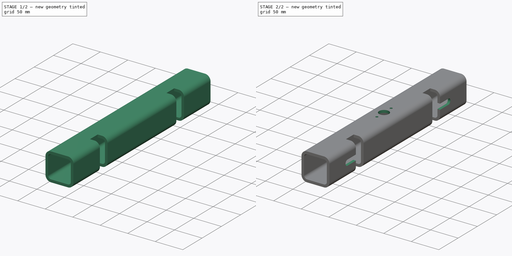
[diagram: build sequence overview — one tinted view per stage of 2, left to right]
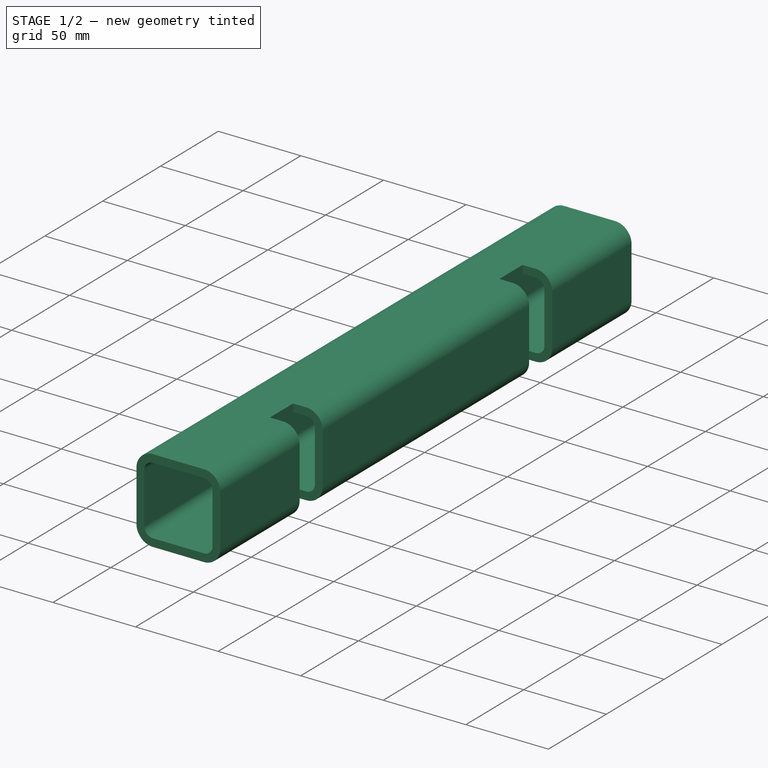
[diagram: stage 1 of 2 — iso view after this stage's code; geometry added in this stage tinted green]
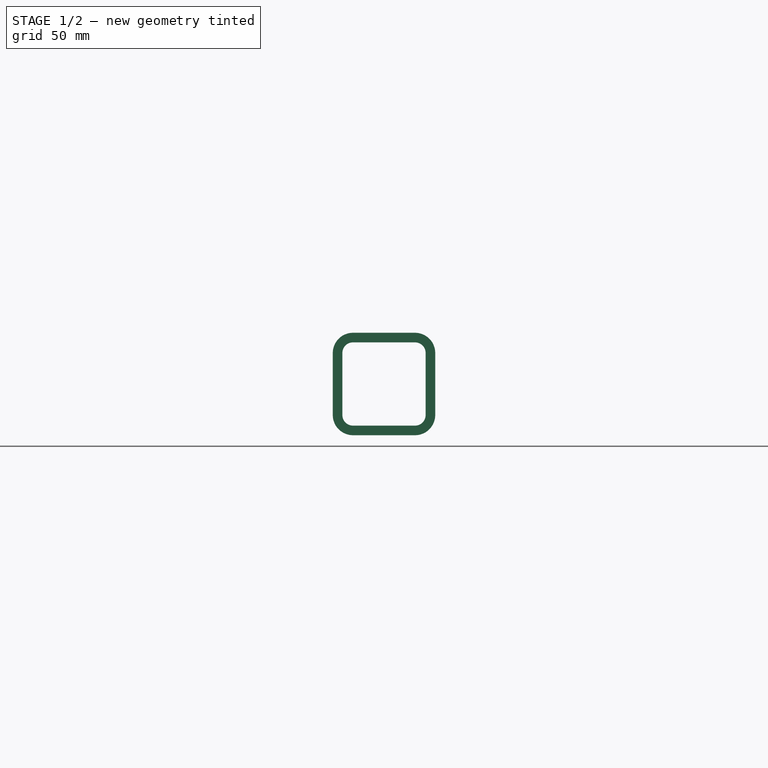
[diagram: stage 1 of 2 — front view after this stage's code; geometry added in this stage tinted green]
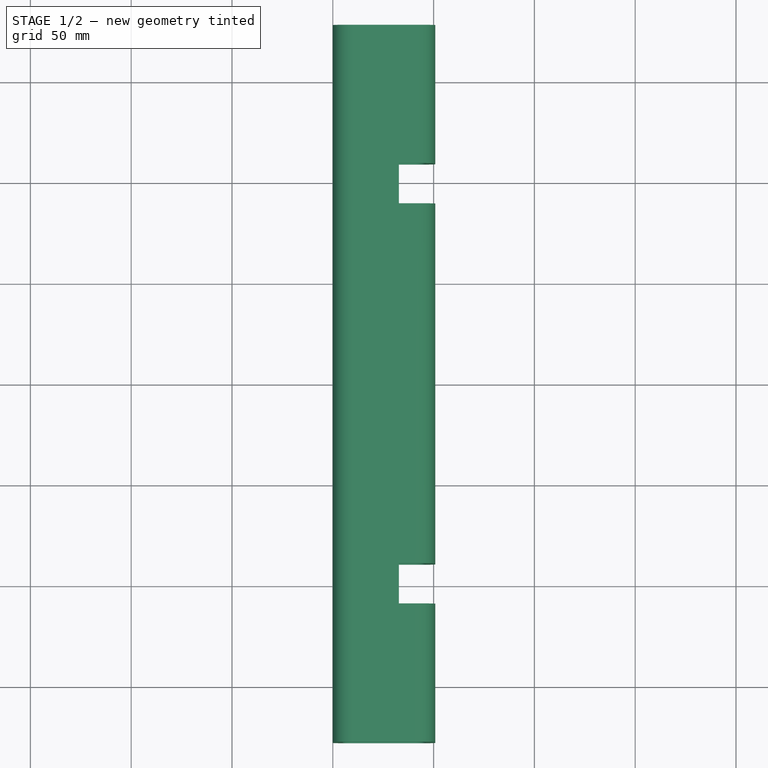
[diagram: stage 1 of 2 — top view after this stage's code; geometry added in this stage tinted green]
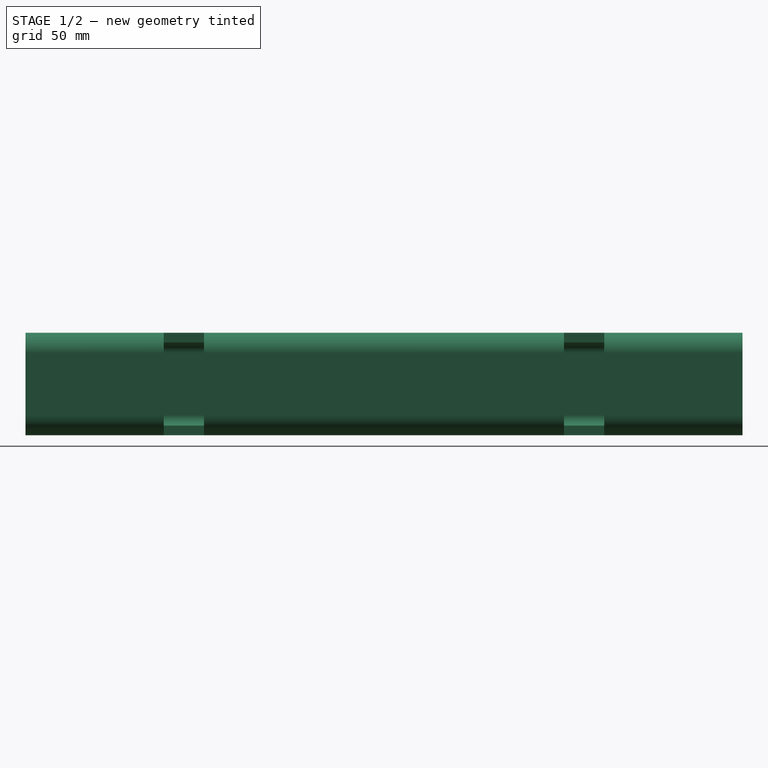
[diagram: stage 1 of 2 — right view after this stage's code; geometry added in this stage tinted green]
FCSTD DOCUMENT  (FreeCAD 0.19R23578 (Git))
Label: frame_bottom_piece
License: All rights reserved
LicenseURL: http://en.wikipedia.org/wiki/All_rights_reserved
objects: PartDesign::CoordinateSystem×6, Sketcher::SketchObject×4, PartDesign::Pocket×3, PartDesign::Pad×1, PartDesign::Body×1, App::Part×1
note: 19 computed .brp shape members not serialized (recipe doc carries the construction recipe); baked Part::Feature solids carry a one-line shape summary decoded from their .brp

FEATURE [Sketcher::SketchObject] Sketch006
  AttachmentOffset = pos=(0,0,50.8) rot=(0,0,1;0rad)
  MapMode = 5
  Placement = pos=(50.8,-1.13e-14,1.13e-14) rot=(0.57735,0.57735,0.57735;2.0944rad)
  Support = -> [YZ_Plane011]
  sketch-geometry (8):
    g0: ArcOfCircle CenterX=-131 CenterY=25.4 CenterZ=0 NormalX=0 NormalY=0 NormalZ=1 AngleXU=0 Radius=5 StartAngle=1.5708 EndAngle=4.71239
    g1: ArcOfCircle CenterX=-95 CenterY=25.4 CenterZ=0 NormalX=0 NormalY=0 NormalZ=1 AngleXU=0 Radius=5 StartAngle=4.71239 EndAngle=7.85398
    g2: LineSegment StartX=-131 StartY=20.4 StartZ=0 EndX=-95 EndY=20.4 EndZ=0
    g3: LineSegment StartX=-131 StartY=30.4 StartZ=0 EndX=-95 EndY=30.4 EndZ=0
    g4: ArcOfCircle CenterX=95 CenterY=25.4 CenterZ=0 NormalX=0 NormalY=0 NormalZ=1 AngleXU=0 Radius=5 StartAngle=1.5708 EndAngle=4.71239
    g5: ArcOfCircle CenterX=131 CenterY=25.4 CenterZ=0 NormalX=0 NormalY=0 NormalZ=1 AngleXU=0 Radius=5 StartAngle=4.71239 EndAngle=7.85398
    g6: LineSegment StartX=95 StartY=20.4 StartZ=0 EndX=131 EndY=20.4 EndZ=0
    g7: LineSegment StartX=95 StartY=30.4 StartZ=0 EndX=131 EndY=30.4 EndZ=0
  constraints (18):
    c: Tangent(g0,g3) = 1.5708
    c: Tangent(g0,g2) = -1.5708
    c: Tangent(g2,g1) = -1.5708
    c: Tangent(g3,g1) = 1.5708
    c: Horizontal(g2)
    c: Equal(g0,g1)
    c: Tangent(g4,g7) = 1.5708
    c: Tangent(g4,g6) = -1.5708
    c: Tangent(g6,g5) = -1.5708
    c: Tangent(g7,g5) = 1.5708
    c: Horizontal(g6)
    c: Diameter(g4) = 10
    c: Equal(g4,g1)
    c: Symmetric(g4,g1,g-2)
    c: Symmetric(g0,g5,g-2)
    c: DistanceY(g-1,g4) = 25.4
    c: DistanceX(g1,g4) = 190
    c: DistanceX(g0,g5) = 262
FEATURE [Sketcher::SketchObject] Sketch012
  AttachmentOffset = pos=(0,0,50.8) rot=(0,0,1;0rad)
  MapMode = 5
  Placement = pos=(0,0,50.8) rot=(0,0,1;0rad)
  Support = -> [XY_Plane011]
  sketch-geometry (4):
    g0: Circle CenterX=25.4 CenterY=0 CenterZ=0 NormalX=0 NormalY=0 NormalZ=1 AngleXU=0 Radius=9
    g1: Circle CenterX=25.4 CenterY=18.5 CenterZ=0 NormalX=0 NormalY=0 NormalZ=1 AngleXU=0 Radius=2.25
    g2: Circle CenterX=25.4 CenterY=-18.5 CenterZ=0 NormalX=0 NormalY=0 NormalZ=1 AngleXU=0 Radius=2.25
    g3: LineSegment StartX=25.4 StartY=18.5 StartZ=0 EndX=25.4 EndY=-18.5 EndZ=0
  constraints (10):
    c: PointOnObject(g0,g-1)
    c: Coincident(g3,g1)
    c: Coincident(g3,g2)
    c: PointOnObject(g0,g3)
    c: Symmetric(g1,g2,g-1)
    c: Equal(g1,g2)
    c: DistanceY(g2,g1) = 37
    c: DistanceX(g-1,g0) = 25.4
    c: Diameter(g1) = 4.5
    c: Diameter(g0) = 18
FEATURE [Sketcher::SketchObject] Sketch
  MapMode = 5
  Placement = pos=(0,0,0) rot=(1,0,0;1.5708rad)
  Support = -> [XZ_Plane011]
  sketch-geometry (16):
    g0: LineSegment StartX=10 StartY=0 StartZ=0 EndX=40.8 EndY=0 EndZ=0
    g1: LineSegment StartX=50.8 StartY=10 StartZ=0 EndX=50.8 EndY=40.8 EndZ=0
    g2: LineSegment StartX=40.8 StartY=50.8 StartZ=0 EndX=10 EndY=50.8 EndZ=0
    g3: LineSegment StartX=0 StartY=40.8 StartZ=0 EndX=0 EndY=10 EndZ=0
    g4: ArcOfCircle CenterX=10 CenterY=40.8 CenterZ=0 NormalX=0 NormalY=0 NormalZ=1 AngleXU=0 Radius=10 StartAngle=1.5708 EndAngle=3.14159
    g5: ArcOfCircle CenterX=10 CenterY=10 CenterZ=0 NormalX=0 NormalY=0 NormalZ=1 AngleXU=0 Radius=10 StartAngle=3.14159 EndAngle=4.71239
    g6: ArcOfCircle CenterX=40.8 CenterY=10 CenterZ=0 NormalX=0 NormalY=0 NormalZ=1 AngleXU=0 Radius=10 StartAngle=4.71239 EndAngle=6.28319
    g7: ArcOfCircle CenterX=40.8 CenterY=40.8 CenterZ=0 NormalX=0 NormalY=0 NormalZ=1 AngleXU=0 Radius=10 StartAngle=3e-16 EndAngle=1.5708
    g8: LineSegment StartX=10 StartY=46.0375 StartZ=0 EndX=40.8 EndY=46.0375 EndZ=0
    g9: LineSegment StartX=46.0375 StartY=40.8 StartZ=0 EndX=46.0375 EndY=10 EndZ=0
    g10: LineSegment StartX=40.8 StartY=4.7625 StartZ=0 EndX=10 EndY=4.7625 EndZ=0
    g11: LineSegment StartX=4.7625 StartY=10 StartZ=0 EndX=4.7625 EndY=40.8 EndZ=0
    g12: ArcOfCircle CenterX=10 CenterY=40.8 CenterZ=0 NormalX=0 NormalY=0 NormalZ=1 AngleXU=0 Radius=5.2375 StartAngle=1.5708 EndAngle=3.14159
    g13: ArcOfCircle CenterX=10 CenterY=10 CenterZ=0 NormalX=0 NormalY=0 NormalZ=1 AngleXU=0 Radius=5.2375 StartAngle=3.14159 EndAngle=4.71239
    g14: ArcOfCircle CenterX=40.8 CenterY=10 CenterZ=0 NormalX=0 NormalY=0 NormalZ=1 AngleXU=0 Radius=5.2375 StartAngle=4.71239 EndAngle=6.28319
    g15: ArcOfCircle CenterX=40.8 CenterY=40.8 CenterZ=0 NormalX=0 NormalY=0 NormalZ=1 AngleXU=0 Radius=5.2375 StartAngle=0 EndAngle=1.5708
  constraints (36):
    c: Horizontal(g0)
    c: Horizontal(g2)
    c: Vertical(g1)
    c: Vertical(g3)
    c: Tangent(g2,g4) = -1.5708
    c: Tangent(g3,g4) = -1.5708
    c: Tangent(g3,g5) = -1.5708
    c: Tangent(g0,g5) = -1.5708
    c: Tangent(g0,g6) = -1.5708
    c: Tangent(g1,g6) = -1.5708
    c: Tangent(g2,g7) = -1.5708
    c: Tangent(g1,g7) = -1.5708
    c: Horizontal(g8)
    c: Horizontal(g10)
    c: Vertical(g9)
    c: Tangent(g8,g12) = 1.5708
    c: Tangent(g11,g12) = 1.5708
    c: Tangent(g11,g13) = 1.5708
    c: Tangent(g10,g13) = 1.5708
    c: Tangent(g9,g14) = 1.5708
    c: Tangent(g10,g14) = 1.5708
    c: Tangent(g8,g15) = 1.5708
    c: Tangent(g9,g15) = 1.5708
    c: PointOnObject(g3,g-2)
    c: PointOnObject(g0,g-1)
    c: DistanceX(g3,g1) = 50.8
    c: DistanceY(g0,g2) = 50.8
    c: Coincident(g13,g5)
    c: Coincident(g12,g4)
    c: Coincident(g7,g15)
    c: Coincident(g14,g6)
    c: Equal(g5,g4)
    c: Equal(g4,g7)
    c: Equal(g7,g6)
    c: DistanceX(g3,g11) = 4.7625
    c: DistanceX(g3,g0) = 10
FEATURE [PartDesign::Pad] Pad
  AllowMultiFace = false
  Direction = (1,1,1)
  Length = 355.6
  Length2 = 100
  Midplane = true
  Placement = pos=(0,0,0) rot=(1,0,0;1.5708rad)
  Profile = -> Sketch
  Type = 0
FEATURE [Sketcher::SketchObject] Sketch005
  AttachmentOffset = pos=(0,0,50.8) rot=(0,0,1;0rad)
  MapMode = 5
  Placement = pos=(0,0,50.8) rot=(0,0,1;0rad)
  Support = -> [XY_Plane011]
  sketch-geometry (8):
    g0: LineSegment StartX=32.8 StartY=89.25 StartZ=0 EndX=57.8 EndY=89.25 EndZ=0
    g1: LineSegment StartX=57.8 StartY=89.25 StartZ=0 EndX=57.8 EndY=109.25 EndZ=0
    g2: LineSegment StartX=57.8 StartY=109.25 StartZ=0 EndX=32.8 EndY=109.25 EndZ=0
    g3: LineSegment StartX=32.8 StartY=109.25 StartZ=0 EndX=32.8 EndY=89.25 EndZ=0
    g4: LineSegment StartX=32.8 StartY=-89.25 StartZ=0 EndX=57.8 EndY=-89.25 EndZ=0
    g5: LineSegment StartX=57.8 StartY=-89.25 StartZ=0 EndX=57.8 EndY=-109.25 EndZ=0
    g6: LineSegment StartX=57.8 StartY=-109.25 StartZ=0 EndX=32.8 EndY=-109.25 EndZ=0
    g7: LineSegment StartX=32.8 StartY=-109.25 StartZ=0 EndX=32.8 EndY=-89.25 EndZ=0
  constraints (22):
    c: Coincident(g0,g1)
    c: Coincident(g1,g2)
    c: Coincident(g2,g3)
    c: Coincident(g3,g0)
    c: Horizontal(g0)
    c: Horizontal(g2)
    c: Vertical(g1)
    c: Vertical(g3)
    c: Coincident(g4,g5)
    c: Coincident(g5,g6)
    c: Coincident(g6,g7)
    c: Coincident(g7,g4)
    c: Horizontal(g4)
    c: Horizontal(g6)
    c: Vertical(g5)
    c: Vertical(g7)
    c: Symmetric(g0,g4,g-1)
    c: Symmetric(g1,g5,g-1)
    c: DistanceY(g1,g1) = 20
    c: DistanceX(g-1,g0) = 32.8
    c: DistanceX(g0,g0) = 25
    c: DistanceY(g4,g0) = 178.5
FEATURE [PartDesign::Pocket] Pocket
  AllowMultiFace = false
  BaseFeature = -> Pad
  Length = 5
  Length2 = 100
  Placement = pos=(0,0,0) rot=(1,0,0;1.5708rad)
  Profile = -> Sketch005
  Type = 1
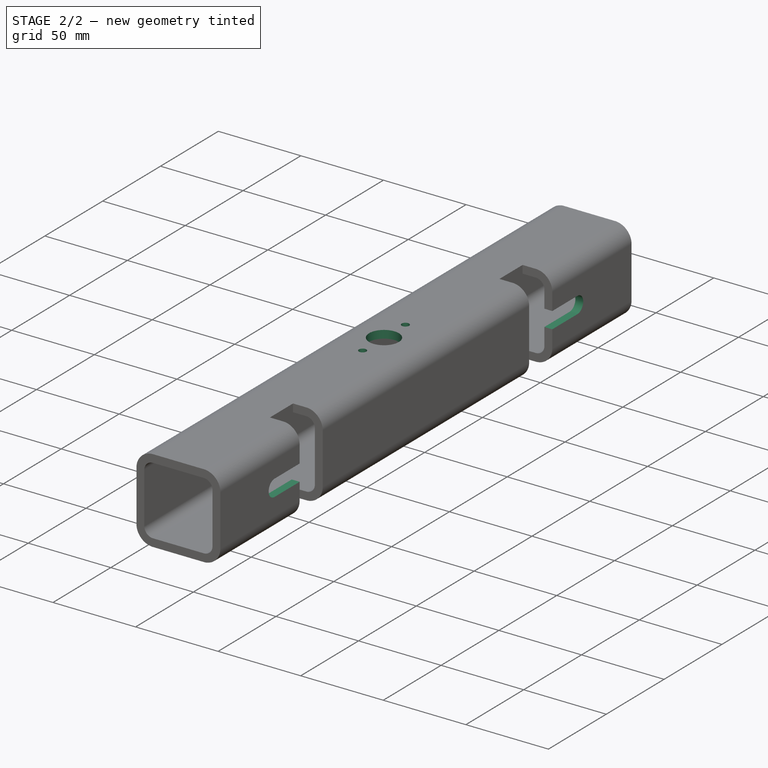
[diagram: stage 2 of 2 — iso view after this stage's code; geometry added in this stage tinted green]
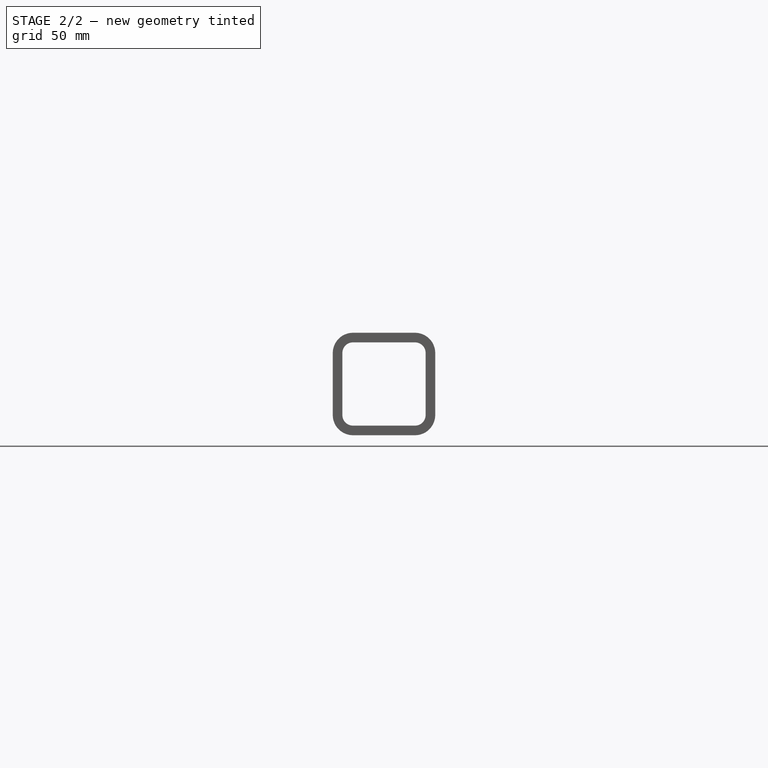
[diagram: stage 2 of 2 — front view after this stage's code; geometry added in this stage tinted green]
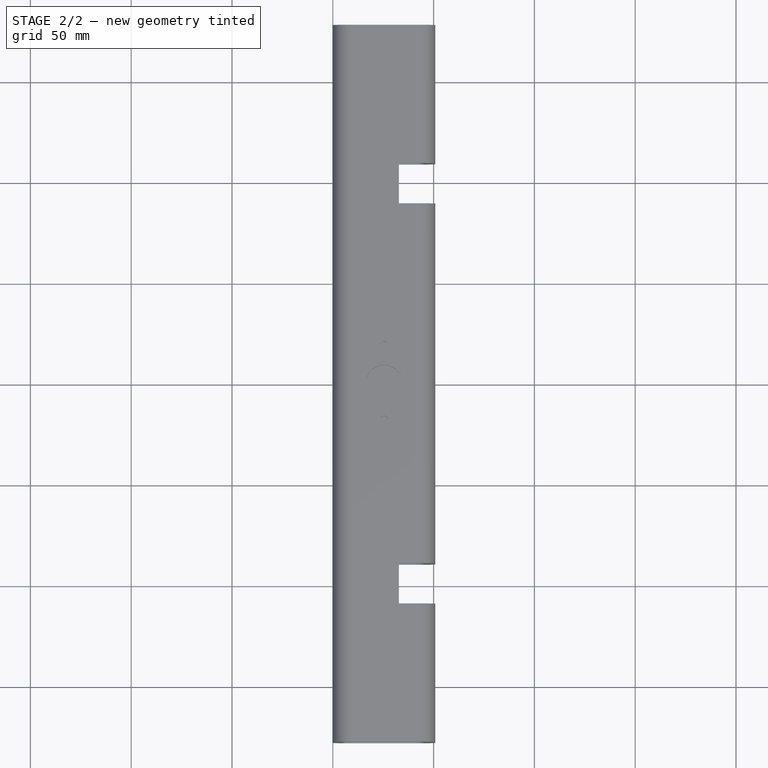
[diagram: stage 2 of 2 — top view after this stage's code; geometry added in this stage tinted green]
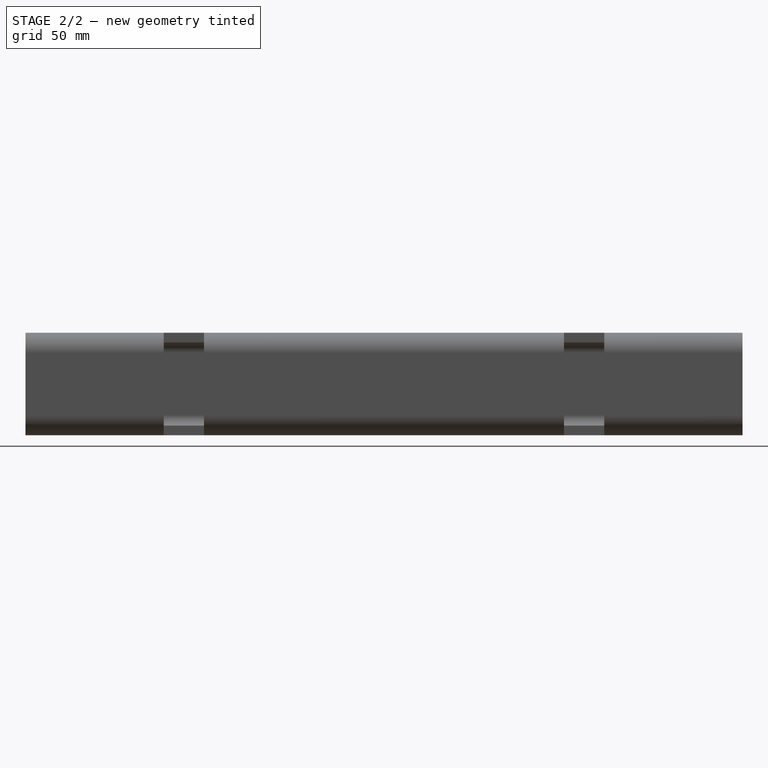
[diagram: stage 2 of 2 — right view after this stage's code; geometry added in this stage tinted green]
FEATURE [PartDesign::Pocket] Pocket001
  AllowMultiFace = false
  BaseFeature = -> Pocket
  Length = 5
  Length2 = 100
  Placement = pos=(0,0,0) rot=(1,0,0;1.5708rad)
  Profile = -> Sketch006
  Type = 2
FEATURE [PartDesign::Pocket] Pocket006
  AllowMultiFace = false
  BaseFeature = -> Pocket001
  Length = 5
  Length2 = 100
  Placement = pos=(0,0,0) rot=(1,0,0;1.5708rad)
  Profile = -> Sketch012
  Type = 0
FEATURE [PartDesign::Body] Body
  Group = -> [Sketch,Pad,Sketch005,Pocket,Sketch006,Pocket001,Sketch012,Pocket006]
  Origin = -> Origin011
  Tip = -> Pocket006
FEATURE [PartDesign::CoordinateSystem] LCS_1
  AttacherType = Attacher::AttachEngine3D
  AttachmentOffset = pos=(25.4,0,0) rot=(0,0,1;0rad)
  MapMode = 45
  Placement = pos=(25.4,-152.4,50.8) rot=(0.57735,0.57735,0.57735;2.0944rad)
  Support = -> [Pocket006]
  expr: .AttachmentOffset.Base.x = 1"
FEATURE [PartDesign::CoordinateSystem] LCS_2
  AttacherType = Attacher::AttachEngine3D
  AttachmentOffset = pos=(-25.4,0,0) rot=(0,0,1;0rad)
  MapMode = 45
  Placement = pos=(25.4,152.4,50.8) rot=(0.57735,0.57735,0.57735;2.0944rad)
  Support = -> [Pocket006]
  expr: .AttachmentOffset.Base.x = -1"
FEATURE [PartDesign::CoordinateSystem] LCS_3
  AttacherType = Attacher::AttachEngine3D
  MapMode = 11
  Placement = pos=(25.4,0,50.8) rot=(0,0,1;1.5708rad)
  Support = -> [Pocket006]
FEATURE [PartDesign::CoordinateSystem] LCS_4
  AttacherType = Attacher::AttachEngine3D
  MapMode = 45
  Placement = pos=(25.4,0,0) rot=(0,0,1;0rad)
  Support = -> [Pocket006]
FEATURE [PartDesign::CoordinateSystem] LCS_5
  AttacherType = Attacher::AttachEngine3D
  AttachmentOffset = pos=(6,-6,0) rot=(0,0,1;0rad)
  MapMode = 1
  Placement = pos=(38.8,-95.25,0) rot=(0,0,1;0rad)
  Support = -> [Pocket006]
FEATURE [PartDesign::CoordinateSystem] LCS_6
  AttacherType = Attacher::AttachEngine3D
  AttachmentOffset = pos=(6,6,0) rot=(0,0,1;0rad)
  MapMode = 1
  Placement = pos=(38.8,95.25,0) rot=(0,0,1;0rad)
  Support = -> [Pocket006]
FEATURE [App::Part] Part008  label="frame_bottom_piece"
  Group = -> [Body,LCS_1,LCS_2,LCS_3,LCS_4,LCS_5,LCS_6]
  Origin = -> Origin009
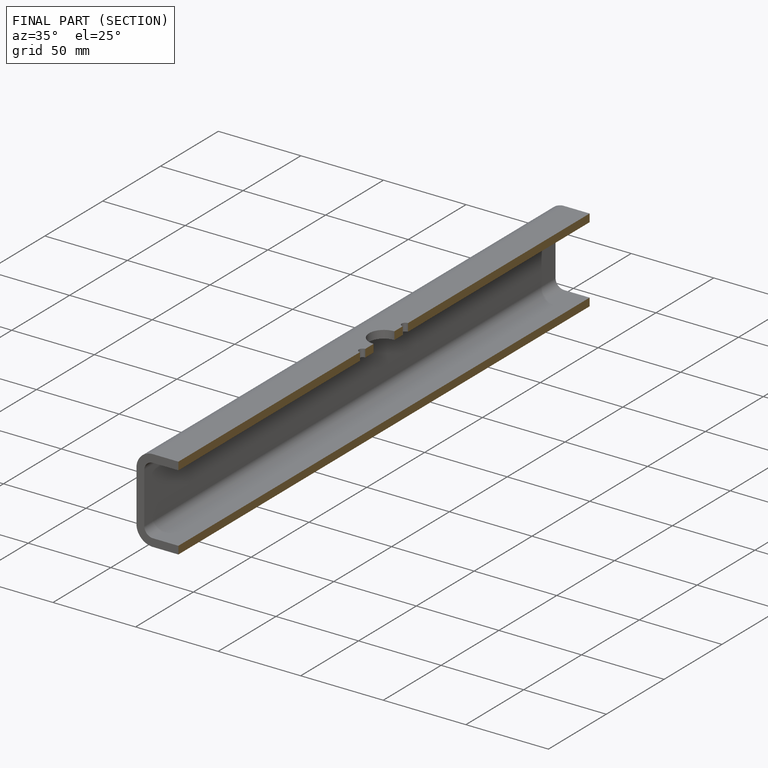
[diagram: finished part — half-section view (interior)]
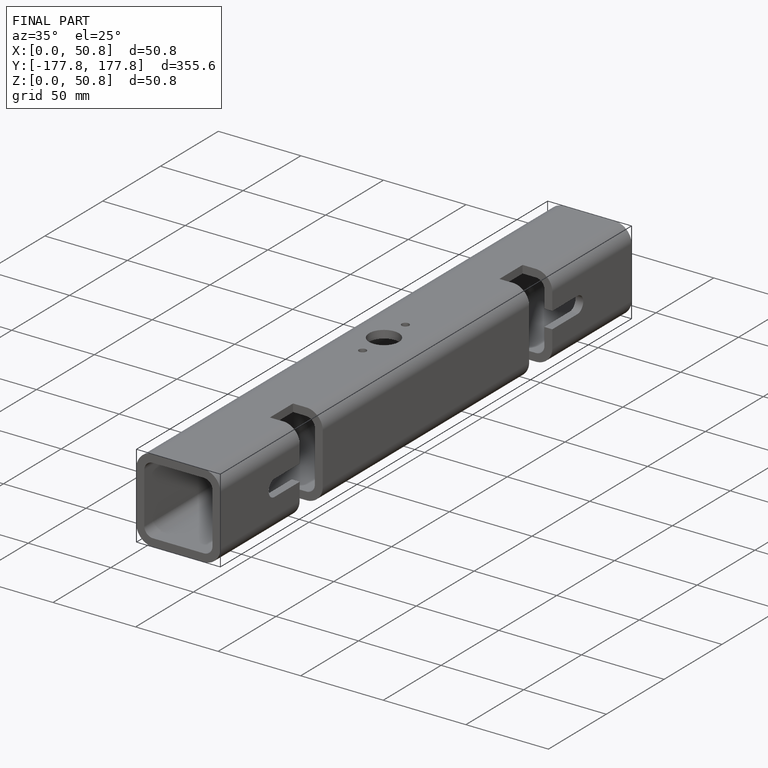
[diagram: finished part — iso view with bounding-box wireframe]
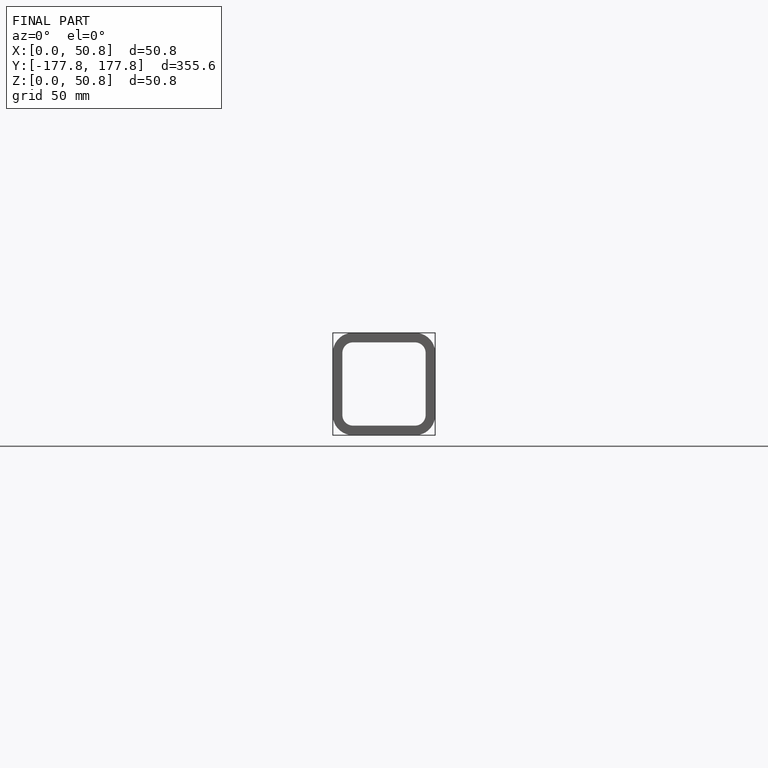
[diagram: finished part — front view with bounding-box wireframe]
